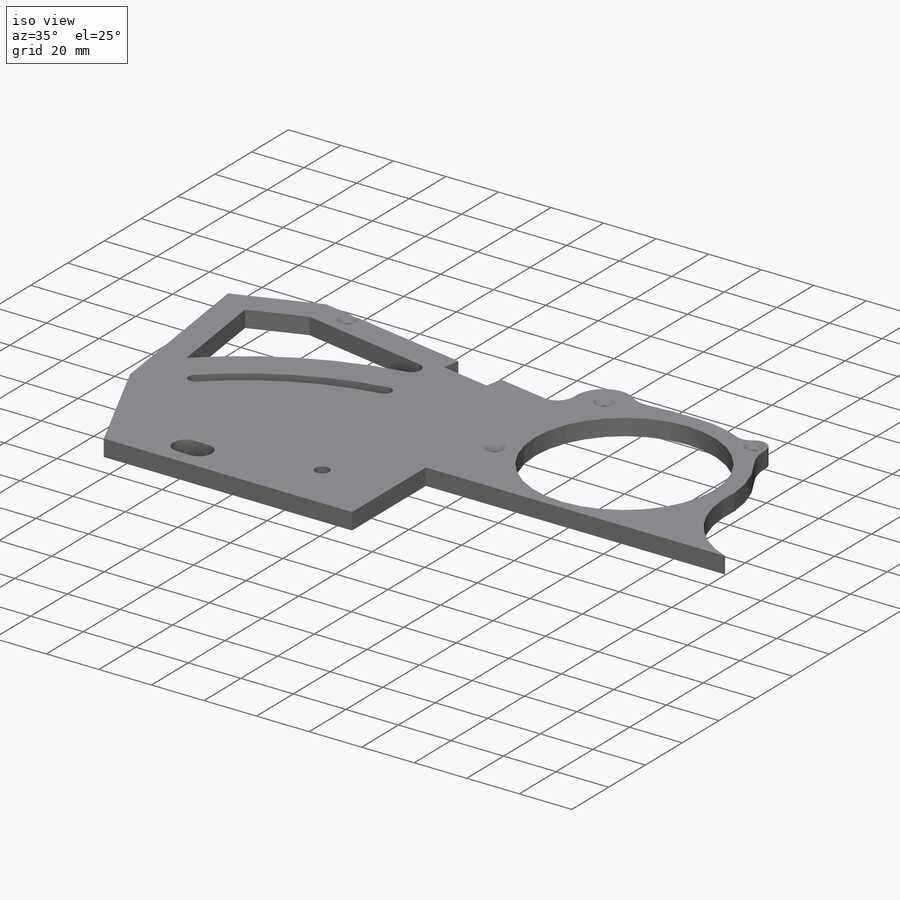
[diagram: iso view]
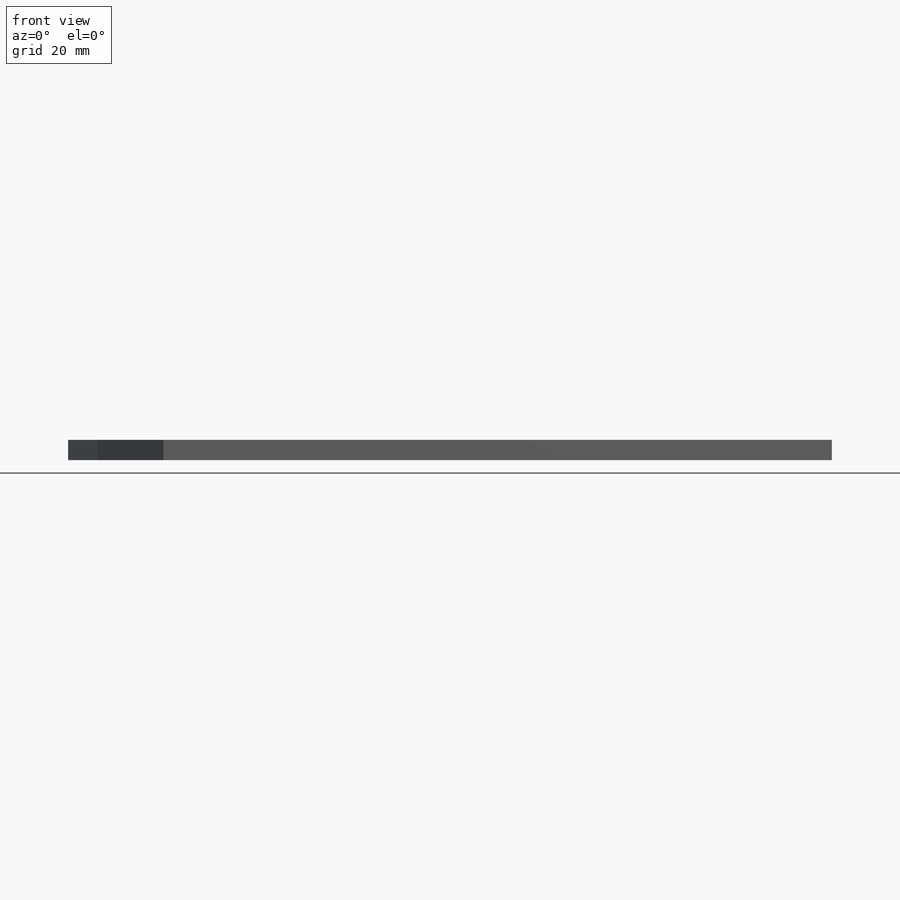
[diagram: front view]
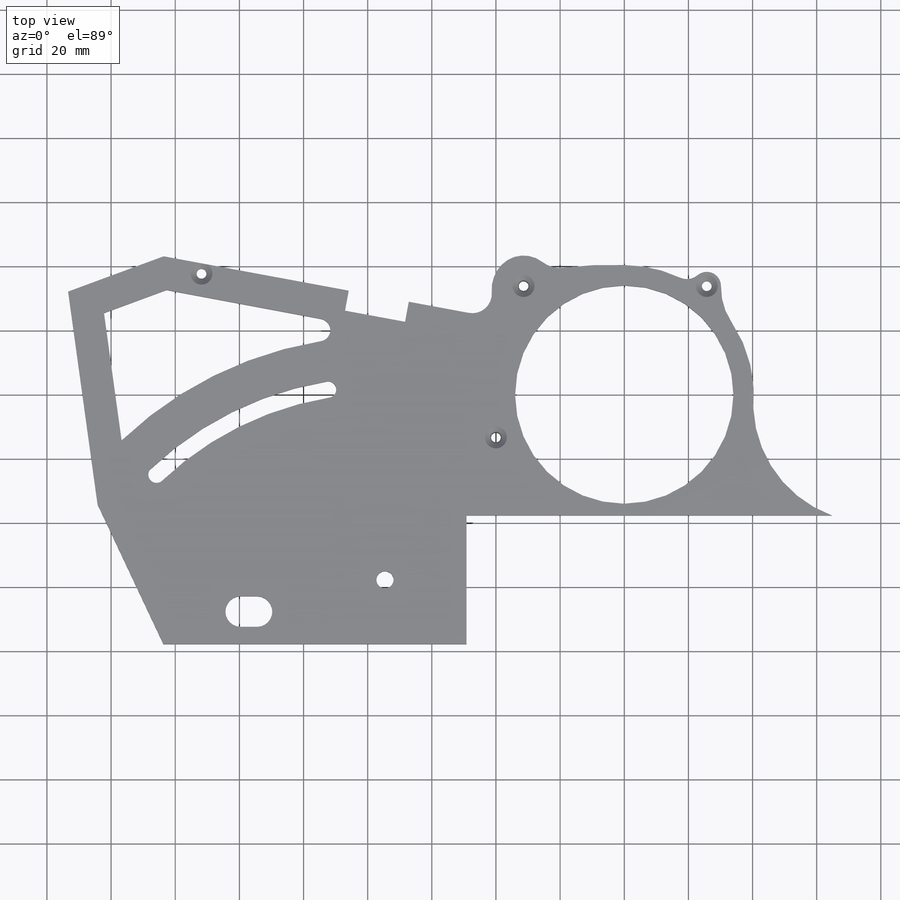
[diagram: top view]
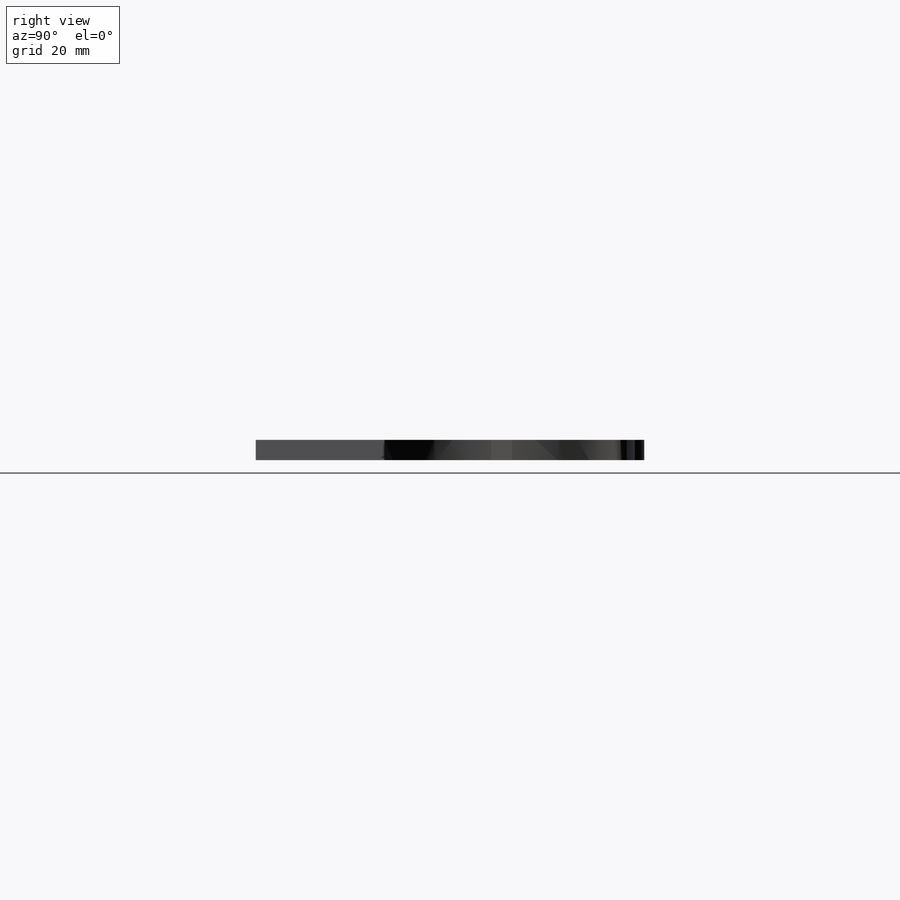
[diagram: right view]
SOLIDWORKS PART (.sldprt)
format: sldprt  version: not decoded by parser v0  size: 271,872 bytes
history: native  units: mm
features: sketch x2, material x1, extrude x1, chamfer x1, cut_extrude x1 (+11 scaffold rows collapsed)
feature tree (17):
  scaffold x11  (default folders/planes/origin — collapsed)
  material  "Material <not specified>"
  sketch  "Sketch1"  dims[c1.D1=68.072mm c1.D2=12.7mm c1.D3=19.05mm c1.D6=3.048mm c1.D4=155.6004mm c1.D9=99.06mm c1.D10=12.7mm c2.D9=99.06mm c2.D10=6.604mm c2.D18=6.35mm c2.D4=152.4mm c3.D18=3.048mm c3.D14=3.048mm c3.D20=3.048mm c3.D21=8.89mm c3.D2=6.35mm c3.D4=101.6mm c3.D5=40.132mm c3.D7=127.0mm c3.D8=76.2mm c3.D11=31.75mm c3.D13=4.7625mm c4.D14=5.3975mm c4.D13=95.25mm c5.D14=19.05mm c5.D15=19.05mm c5.D16=19.05mm c5.D17=19.05mm c5.D9=6.35mm c6.D15=1.651mm c6.D16=~48.190402mm c7.D16=~179.894806deg c8.D16=~10.250017mm c8.D15=5.1308mm c8.D19=12.7mm c8.D12=10.16mm]
  extrude  "Boss-Extrude1"  Depth=6.35mm
  chamfer  "Chamfer1"  Distance=1.905mm Angle=45deg
  sketch  "Sketch2"  dims[D1=2.2606mm]
  cut_extrude  "Cut-Extrude1"  Depth=12.7mm
decode coverage: 5 of 5 modeling features carry decoded parameters
note: ~ marks probable driven/reference dimensions
note: suppression state not decoded; provenance and decode notes live in map.json
